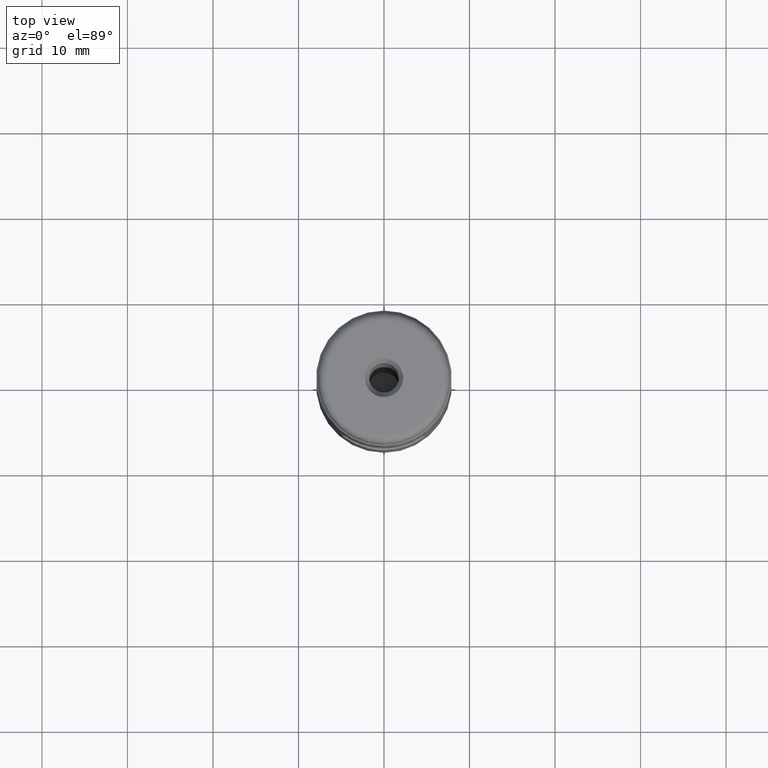
[diagram: clean part render]
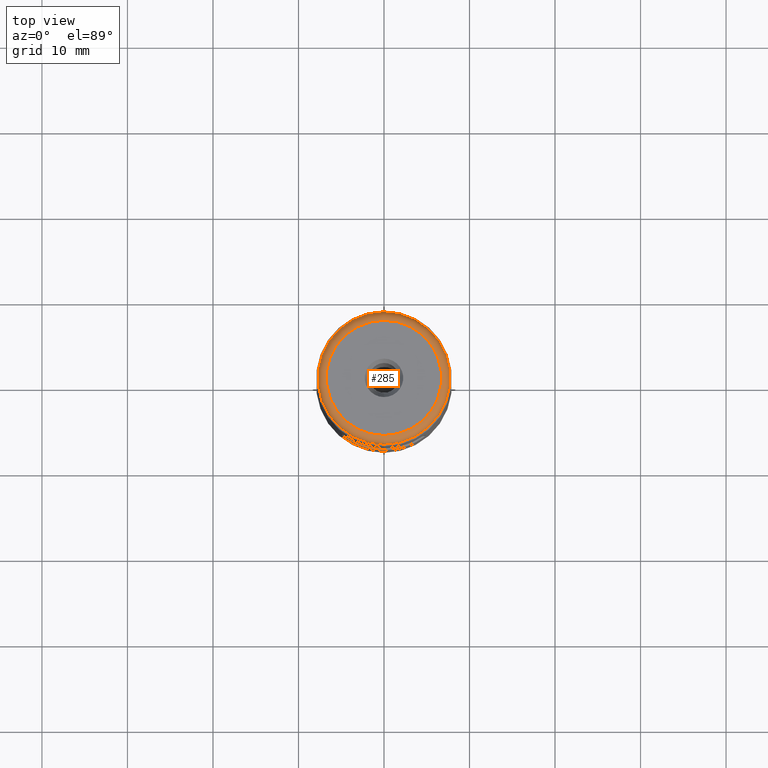
[diagram: same view with one face highlighted and labeled with its STEP entity id]
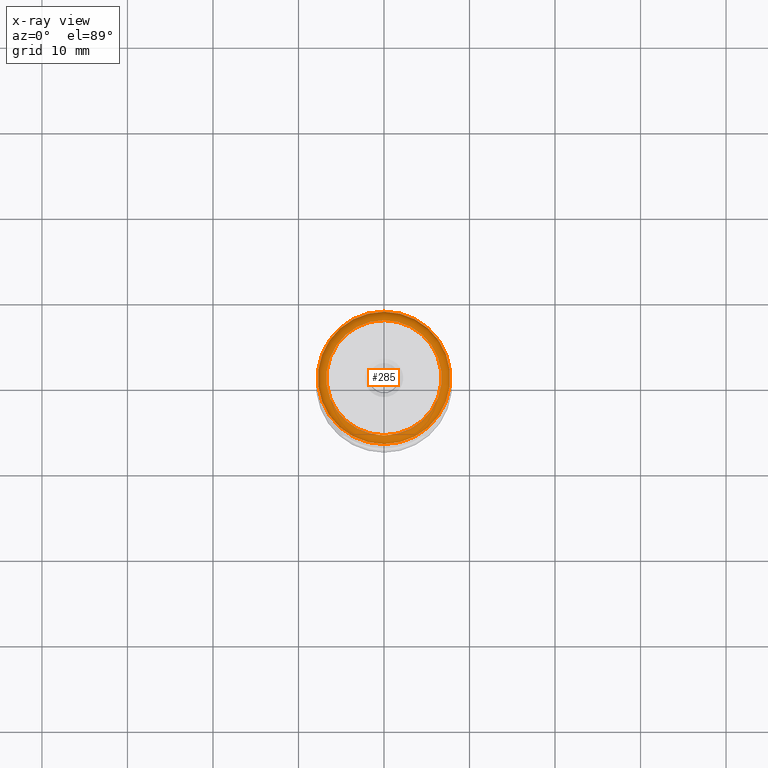
[diagram: x-ray of the same camera — body ghosted, the highlighted face saturated]
A machine part, top view. The second image highlights one B-rep face of the part: STEP entity #285.
The next image is the same camera in x-ray: the body ghosted, the highlighted face saturated — about 0% of this face is hidden behind the body in this view.
In plain terms, the highlighted toroidal blend (fillet) surface has major radius 6.7375 mm and minor (blend) radius 1 mm.
Its self-contained STEP definition (entity closure, byte-faithful):
#153=TOROIDAL_SURFACE('',#726,6.7375,1.);
#214=FACE_BOUND('',#351,.T.);
#215=FACE_BOUND('',#352,.T.);
#285=ADVANCED_FACE('',(#214,#215),#153,.T.);
#351=EDGE_LOOP('',(#442));
#352=EDGE_LOOP('',(#443));
#442=ORIENTED_EDGE('',*,*,#587,.F.);
#443=ORIENTED_EDGE('',*,*,#589,.F.);
#539=VERTEX_POINT('',#1259);
#541=VERTEX_POINT('',#1264);
#587=EDGE_CURVE('',#539,#539,#630,.T.);
#589=EDGE_CURVE('',#541,#541,#632,.T.);
#630=CIRCLE('',#721,7.7375);
#632=CIRCLE('',#724,6.7375);
#721=AXIS2_PLACEMENT_3D('',#1258,#811,#812);
#724=AXIS2_PLACEMENT_3D('',#1263,#817,#818);
#726=AXIS2_PLACEMENT_3D('',#1266,#821,#822);
#811=DIRECTION('',(0.,-1.17145536458252E-15,-1.));
#812=DIRECTION('',(0.,-1.,1.79357516094533E-15));
#817=DIRECTION('',(0.,1.17145536458252E-15,1.));
#818=DIRECTION('',(0.,-1.,2.05978297704111E-15));
#821=DIRECTION('',(0.,1.17145536458252E-15,1.));
#822=DIRECTION('',(0.,-1.,1.79357516094533E-15));
#1258=CARTESIAN_POINT('',(0.,9.55321849817048E-14,81.55));
#1259=CARTESIAN_POINT('',(0.,-7.7374999999999,81.55));
#1263=CARTESIAN_POINT('',(0.,9.67036403462874E-14,82.55));
#1264=CARTESIAN_POINT('',(0.,-6.7374999999999,82.55));
#1266=CARTESIAN_POINT('',(0.,9.55321849817048E-14,81.55));